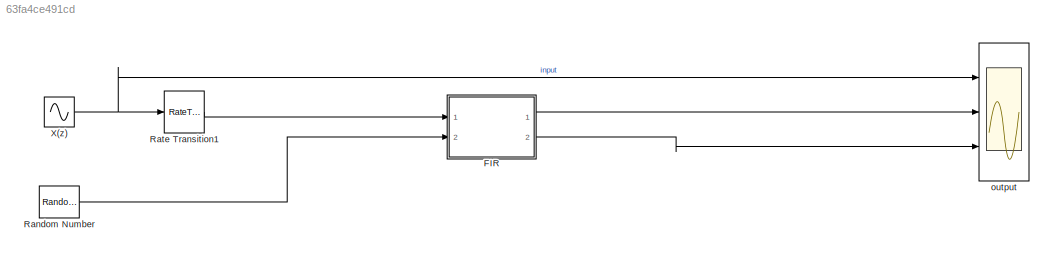
MODEL slx_63fa4ce491cd
KIND model
CONFIG AbsTol = auto
CONFIG EnableMultiTasking = off
CONFIG FixedStep = auto
CONFIG MaxStep = .001
CONFIG MinStep = auto
CONFIG RelTol = 1e-3
CONFIG SampleTimeConstraint = Unconstrained
CONFIG SolverName = VariableStepAuto
CONFIG StartTime = 0.0
CONFIG StopTime = 10.0
BLOCK [ModelReference] FIR
  ModelNameDialog = FIR
  ModelReferenceVersion = 1.11
  Ports = [2, 2]
BLOCK [RandomNumber] Random Number
  SampleTime = 0.1
BLOCK [RateTransition] Rate Transition1
BLOCK [Sin] X(z)
  Ports = [0, 1]
  SampleTime = 0
BLOCK [Scope] output
  Floating = off
  NumInputPorts = 3
  Ports = [3]
  ScopeSpecificationString = Simulink.scopes.TimeScopeBlockCfg('CurrentConfiguration', extmgr.ConfigurationSet(extmgr.Configuration('Core','General UI',true),extmgr.Configuration('Core','Source UI',true),extmgr.Configuration('Sources','WiredSimulink',true),extmgr.Configuration('Visuals','Time Domain',true,'SerializedDisplays',{struct('MinYLimReal','-1.25','MaxYLimReal','1.25','YLabelReal','','MinYLimMag','0.00000','MaxYLimMag...<+2729ch>
LINE FIR:1 -> output:2
LINE FIR:2 -> output:3
LINE Random Number:1 -> FIR:2
LINE Rate Transition1:1 -> FIR:1
NET X(z):1 -> Rate Transition1:1, output:1
note: NET lines group one-source signal fan-out (src -> all destinations, sorted); 1:1 wires keep LINE
